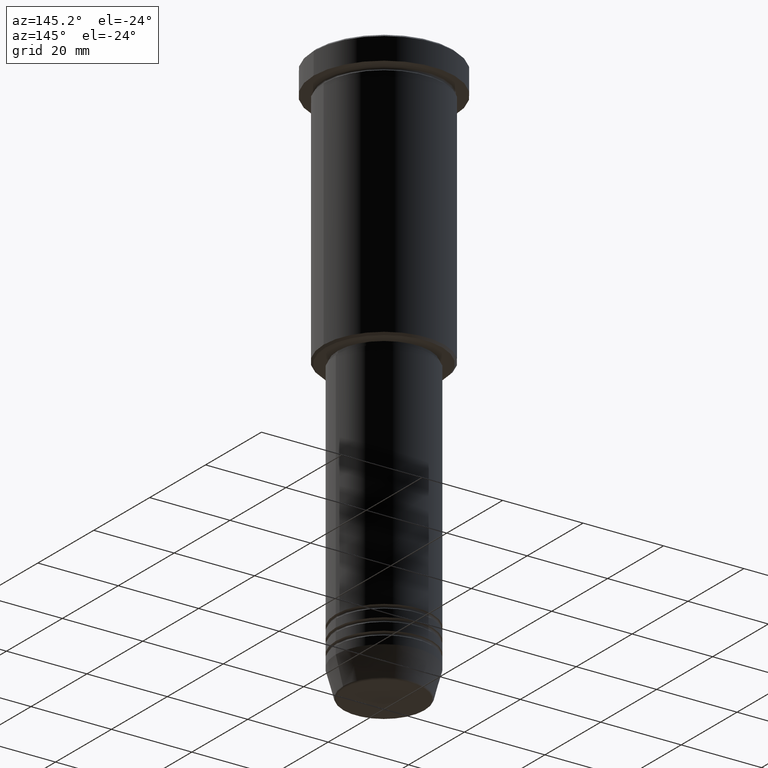
[diagram: clean part render]
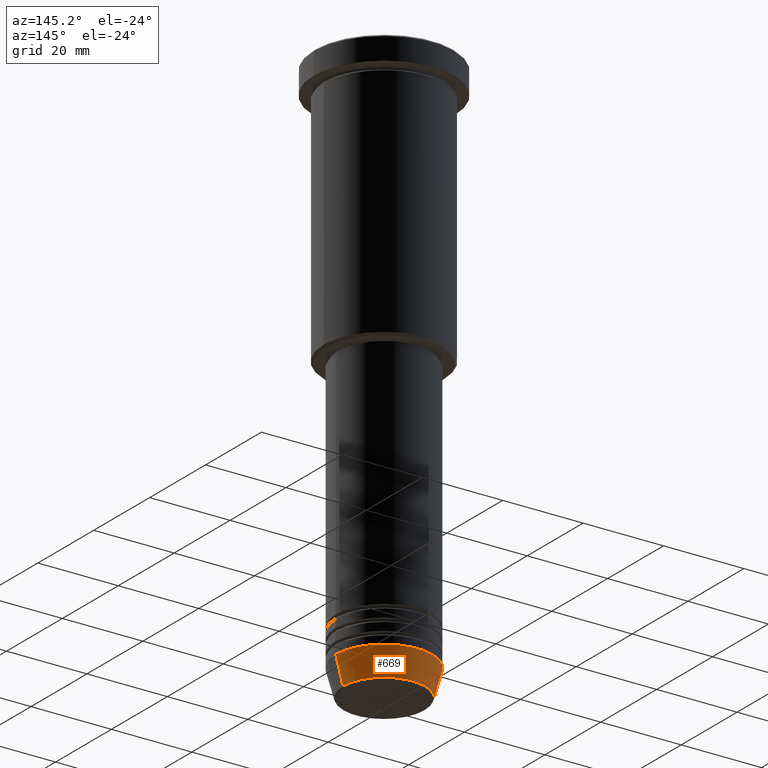
[diagram: same view with one face highlighted and labeled with its STEP entity id]
A machine part, auxiliary view. The second image highlights one B-rep face of the part: STEP entity #669.
In plain terms, the highlighted conical surface has half-angle 15 deg.
Its self-contained STEP definition (entity closure, byte-faithful):
#17 = DIRECTION ( 'NONE',  ( 1.000000000000000000, 0.000000000000000000, 0.000000000000000000 ) ) ;
#22 = VERTEX_POINT ( 'NONE', #559 ) ;
#96 = DIRECTION ( 'NONE',  ( -0.2588190451025213501, 3.169619151431772337E-17, 0.9659258262890680902 ) ) ;
#112 = CARTESIAN_POINT ( 'NONE',  ( 0.000000000000000000, 0.000000000000000000, -134.0000000000000000 ) ) ;
#131 = CARTESIAN_POINT ( 'NONE',  ( 12.00000000000000000, 0.000000000000000000, -134.0000000000000000 ) ) ;
#155 = AXIS2_PLACEMENT_3D ( 'NONE', #112, #1114, #17 ) ;
#202 = VERTEX_POINT ( 'NONE', #718 ) ;
#233 = VECTOR ( 'NONE', #96, 1000.000000000000000 ) ;
#373 = CIRCLE ( 'NONE', #1116, 10.22365507213719127 ) ;
#403 = VERTEX_POINT ( 'NONE', #753 ) ;
#456 = DIRECTION ( 'NONE',  ( 1.000000000000000000, 0.000000000000000000, 0.000000000000000000 ) ) ;
#494 = CARTESIAN_POINT ( 'NONE',  ( -12.00000000000000000, 1.469576158976823947E-15, -134.0000000000000000 ) ) ;
#497 = ORIENTED_EDGE ( 'NONE', *, *, #922, .T. ) ;
#540 = LINE ( 'NONE', #888, #233 ) ;
#543 = DIRECTION ( 'NONE',  ( -0.000000000000000000, -0.000000000000000000, 1.000000000000000000 ) ) ;
#559 = CARTESIAN_POINT ( 'NONE',  ( 10.22365507213719127, 0.000000000000000000, -140.6294095225512706 ) ) ;
#613 = DIRECTION ( 'NONE',  ( 0.2588190451025213501, 0.000000000000000000, 0.9659258262890680902 ) ) ;
#669 = ADVANCED_FACE ( 'NONE', ( #741 ), #1134, .T. ) ;
#702 = LINE ( 'NONE', #131, #894 ) ;
#717 = CARTESIAN_POINT ( 'NONE',  ( 0.000000000000000000, 0.000000000000000000, -134.0000000000000000 ) ) ;
#718 = CARTESIAN_POINT ( 'NONE',  ( -10.22365507213719127, 1.360806402472382744E-15, -140.6294095225512706 ) ) ;
#741 = FACE_OUTER_BOUND ( 'NONE', #889, .T. ) ;
#748 = EDGE_CURVE ( 'NONE', #403, #1181, #1154, .T. ) ;
#753 = CARTESIAN_POINT ( 'NONE',  ( 12.00000000000000000, 0.000000000000000000, -134.0000000000000000 ) ) ;
#758 = ORIENTED_EDGE ( 'NONE', *, *, #748, .F. ) ;
#765 = AXIS2_PLACEMENT_3D ( 'NONE', #717, #543, #456 ) ;
#779 = DIRECTION ( 'NONE',  ( -0.000000000000000000, -0.000000000000000000, 1.000000000000000000 ) ) ;
#876 = EDGE_CURVE ( 'NONE', #22, #403, #702, .T. ) ;
#888 = CARTESIAN_POINT ( 'NONE',  ( -12.00000000000000000, 1.469576158976823947E-15, -134.0000000000000000 ) ) ;
#889 = EDGE_LOOP ( 'NONE', ( #497, #1073, #758, #985 ) ) ;
#894 = VECTOR ( 'NONE', #613, 1000.000000000000000 ) ;
#922 = EDGE_CURVE ( 'NONE', #22, #202, #373, .T. ) ;
#985 = ORIENTED_EDGE ( 'NONE', *, *, #876, .F. ) ;
#1024 = CARTESIAN_POINT ( 'NONE',  ( 0.000000000000000000, 0.000000000000000000, -140.6294095225512706 ) ) ;
#1064 = EDGE_CURVE ( 'NONE', #202, #1181, #540, .T. ) ;
#1073 = ORIENTED_EDGE ( 'NONE', *, *, #1064, .T. ) ;
#1114 = DIRECTION ( 'NONE',  ( -0.000000000000000000, -0.000000000000000000, 1.000000000000000000 ) ) ;
#1116 = AXIS2_PLACEMENT_3D ( 'NONE', #1024, #779, #1153 ) ;
#1134 = CONICAL_SURFACE ( 'NONE', #155, 12.00000000000000000, 0.2617993877991500740 ) ;
#1153 = DIRECTION ( 'NONE',  ( 1.000000000000000000, 0.000000000000000000, 0.000000000000000000 ) ) ;
#1154 = CIRCLE ( 'NONE', #765, 12.00000000000000000 ) ;
#1181 = VERTEX_POINT ( 'NONE', #494 ) ;